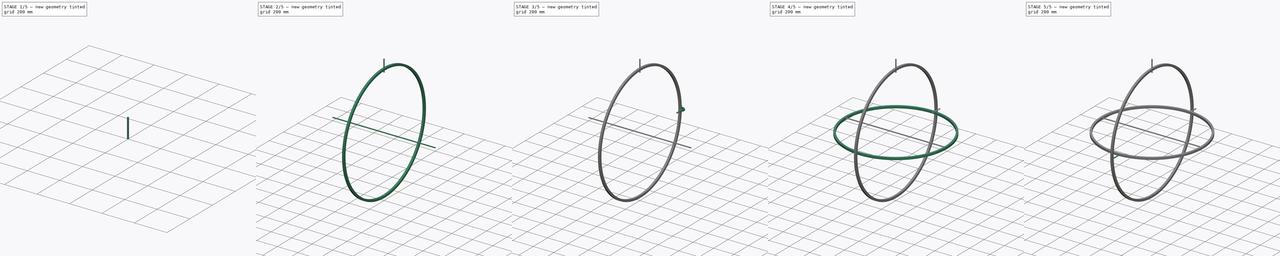
[diagram: build sequence overview — one tinted view per stage of 5, left to right]
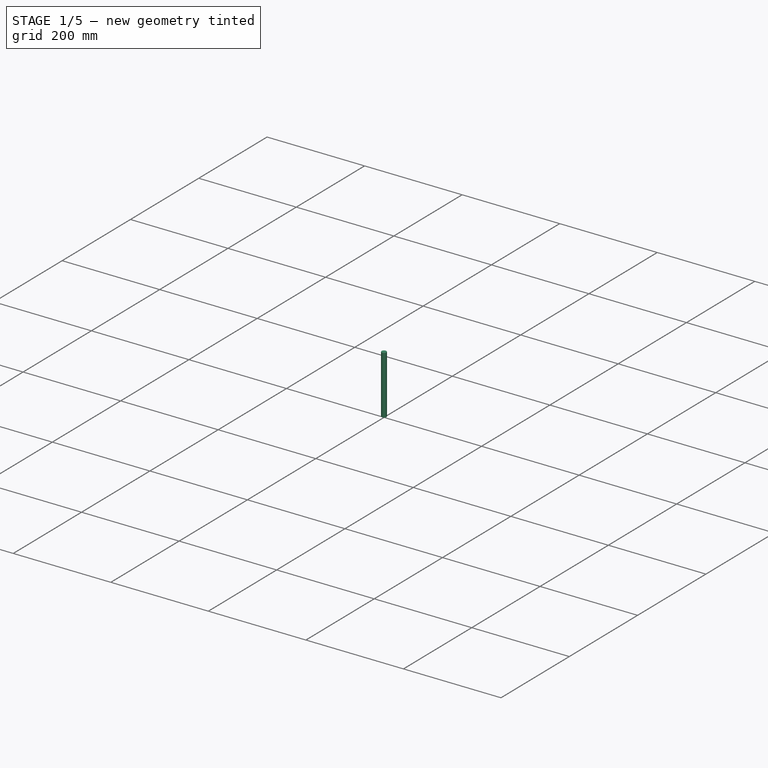
[diagram: stage 1 of 5 — iso view after this stage's code; geometry added in this stage tinted green]
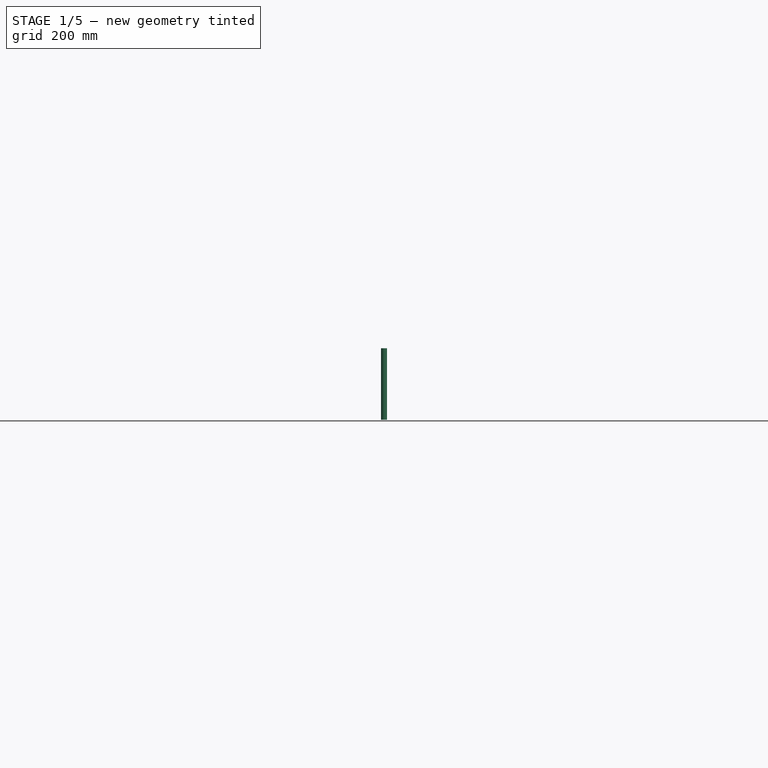
[diagram: stage 1 of 5 — front view after this stage's code; geometry added in this stage tinted green]
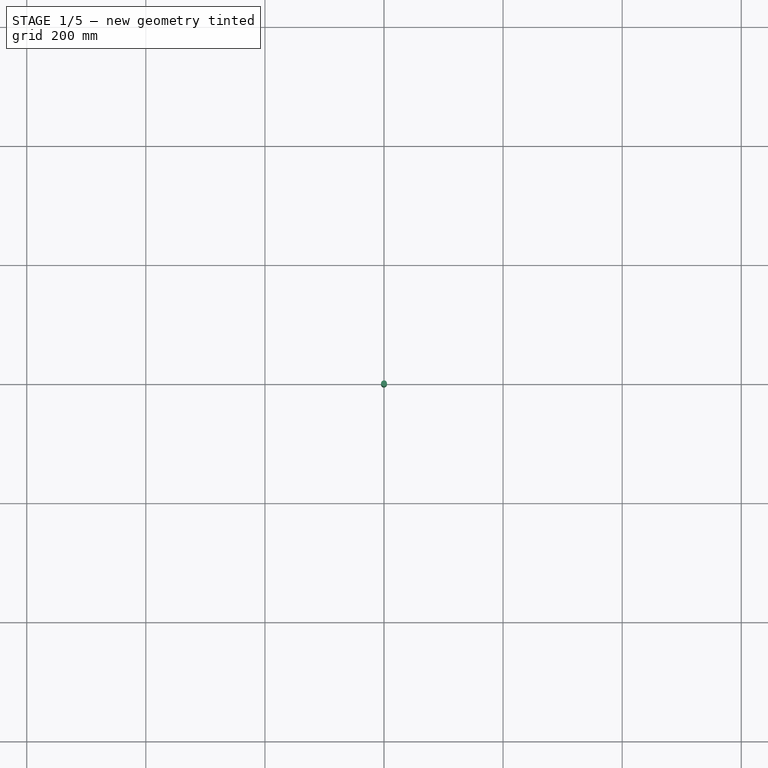
[diagram: stage 1 of 5 — top view after this stage's code; geometry added in this stage tinted green]
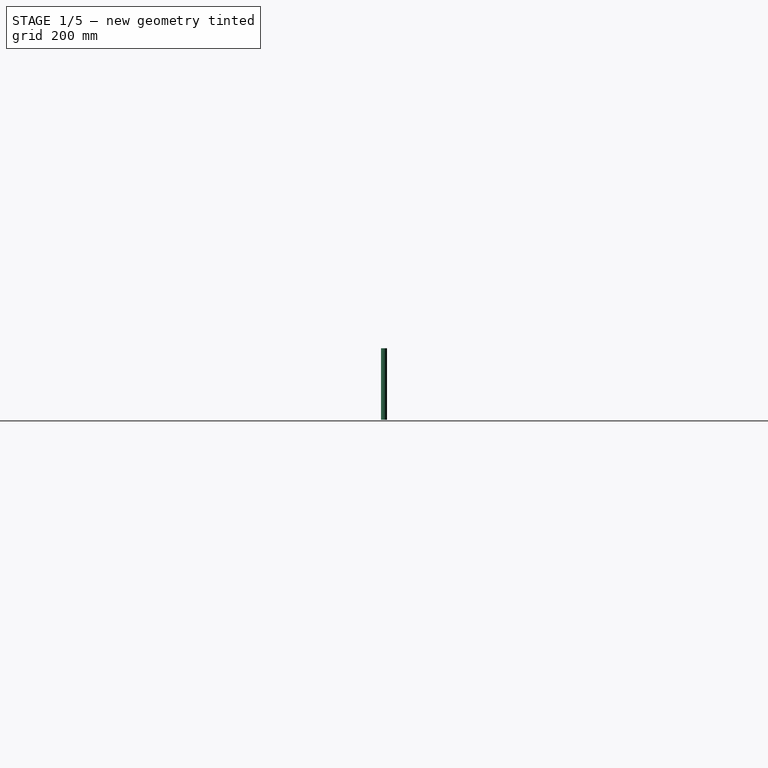
[diagram: stage 1 of 5 — right view after this stage's code; geometry added in this stage tinted green]
FCSTD DOCUMENT  (FreeCAD 0.20R25943 (Git))
Label: bancada
License: All rights reserved
LicenseURL: http://en.wikipedia.org/wiki/All_rights_reserved
objects: Sketcher::SketchObject×14, Part::Extrusion×9, Part::Cut×5, Part::Mirroring×3, Part::FeaturePython×2, PartDesign::Body×1, Part::Compound×1
note: 35 computed .brp shape members not serialized (recipe doc carries the construction recipe); baked Part::Feature solids carry a one-line shape summary decoded from their .brp

FEATURE [Sketcher::SketchObject] Sketch011
  FullyConstrained = true
  Placement = pos=(0,0,0) rot=(0.57735,0.57735,0.57735;2.0944rad)
  sketch-geometry (8):
    g0: LineSegment StartX=-600 StartY=600 StartZ=0 EndX=600 EndY=600 EndZ=0
    g1: LineSegment StartX=600 StartY=600 StartZ=0 EndX=600 EndY=-600 EndZ=0
    g2: LineSegment StartX=600 StartY=-600 StartZ=0 EndX=-600 EndY=-600 EndZ=0
    g3: LineSegment StartX=-600 StartY=-600 StartZ=0 EndX=-600 EndY=600 EndZ=0
    g4: LineSegment StartX=-650 StartY=650 StartZ=0 EndX=650 EndY=650 EndZ=0
    g5: LineSegment StartX=650 StartY=650 StartZ=0 EndX=650 EndY=-650 EndZ=0
    g6: LineSegment StartX=650 StartY=-650 StartZ=0 EndX=-650 EndY=-650 EndZ=0
    g7: LineSegment StartX=-650 StartY=-650 StartZ=0 EndX=-650 EndY=650 EndZ=0
  constraints (22):
    c: Coincident(g0,g1)
    c: Coincident(g1,g2)
    c: Coincident(g2,g3)
    c: Coincident(g3,g0)
    c: Horizontal(g0)
    c: Horizontal(g2)
    c: Vertical(g1)
    c: Vertical(g3)
    c: Distance(g1) = 1200
    c: Equal(g2,g3)
    c: Symmetric(g0,g1,g-1)
    c: Coincident(g4,g5)
    c: Coincident(g5,g6)
    c: Coincident(g6,g7)
    c: Coincident(g7,g4)
    c: Horizontal(g4)
    c: Horizontal(g6)
    c: Vertical(g5)
    c: Vertical(g7)
    c: Equal(g4,g7)
    c: Symmetric(g5,g4,g-1)
    c: DistanceX(g4,g0) = 50
FEATURE [Part::Extrusion] Extrude011
  Base = -> Sketch011
  Dir = (1,0,0)
  DirMode = 2
  FaceMakerClass = Part::FaceMakerBullseye
  LengthFwd = 50
  LengthRev = 0
  Solid = true
  Symmetric = true
FEATURE [Sketcher::SketchObject] Sketch012
  FullyConstrained = true
  MapMode = 5
  Placement = pos=(0,0,650) rot=(0,0,1;0rad)
  Support = -> [Extrude011]
  sketch-geometry (1):
    g0: Circle CenterX=0 CenterY=0 CenterZ=0 NormalX=0 NormalY=0 NormalZ=1 AngleXU=0 Radius=5
  constraints (2):
    c: Diameter(g0) = 10
    c: Coincident(g-1,g0)
FEATURE [Part::Extrusion] Extrude012
  Base = -> Sketch012
  Dir = (0,0,-1)
  DirMode = 0
  FaceMakerClass = Part::FaceMakerBullseye
  LengthFwd = 1500
  LengthRev = 0
  Solid = true
  Symmetric = false
FEATURE [Part::Cut] Cut006
  Base = -> Extrude011
  Tool = -> Extrude012
FEATURE [Sketcher::SketchObject] Sketch013
  FullyConstrained = true
  MapMode = 5
  Placement = pos=(0,0,-650) rot=(1,0,0;3.14159rad)
  Support = -> [Cut006]
  sketch-geometry (1):
    g0: Circle CenterX=0 CenterY=0 CenterZ=0 NormalX=0 NormalY=0 NormalZ=1 AngleXU=0 Radius=5
  constraints (2):
    c: Coincident(g0,g-1)
    c: Diameter(g0) = 10
FEATURE [Part::Extrusion] Extrude013
  Base = -> Sketch013
  Dir = (0,0,1)
  DirMode = 0
  FaceMakerClass = Part::FaceMakerBullseye
  LengthFwd = 120
  LengthRev = 0
  Solid = true
  Symmetric = false
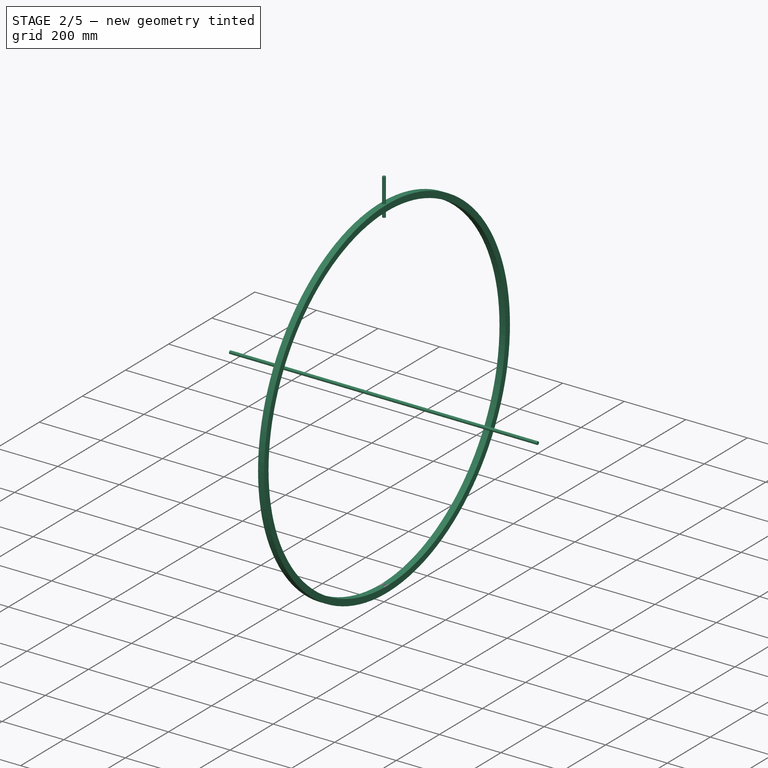
[diagram: stage 2 of 5 — iso view after this stage's code; geometry added in this stage tinted green]
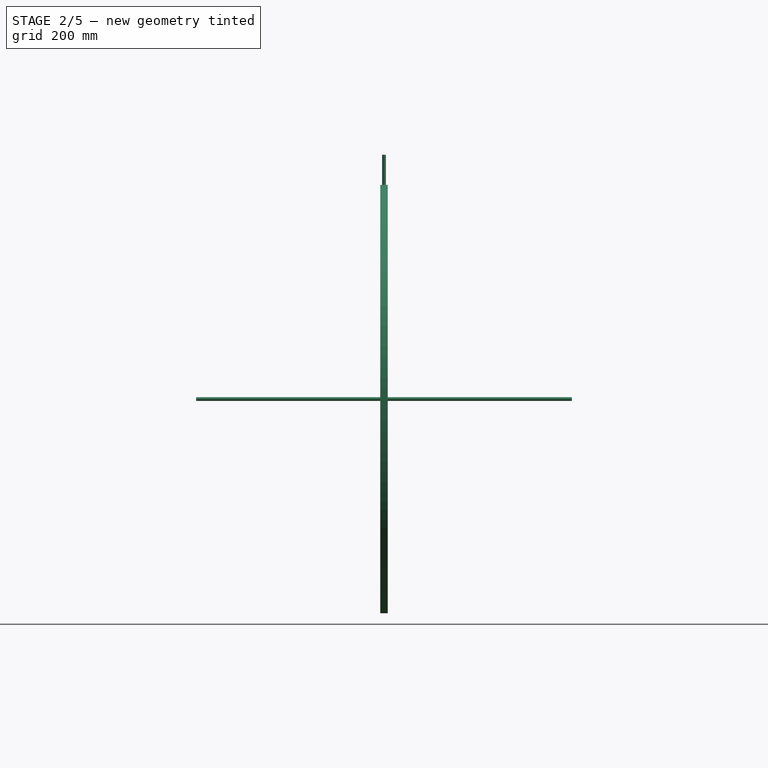
[diagram: stage 2 of 5 — front view after this stage's code; geometry added in this stage tinted green]
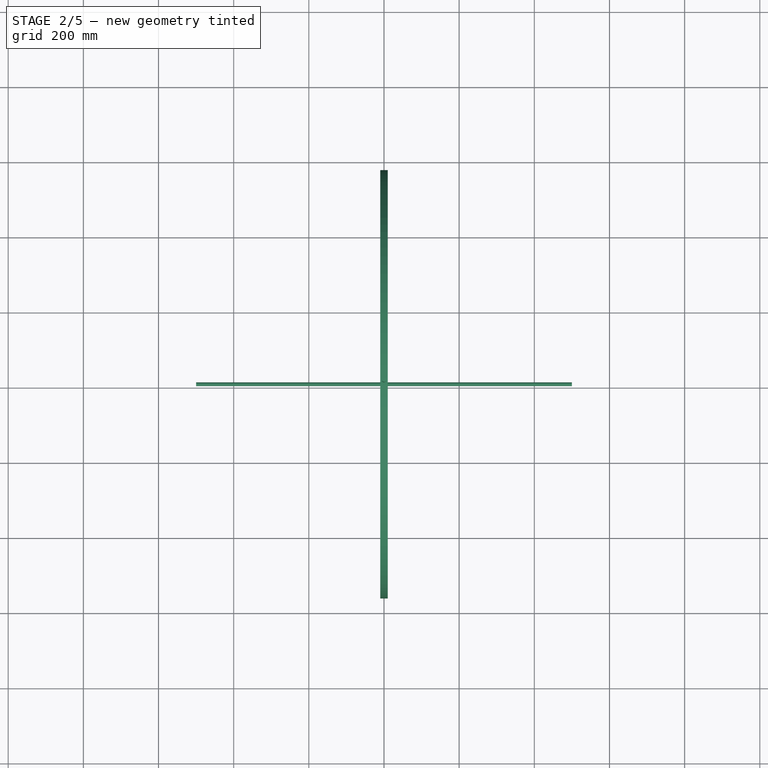
[diagram: stage 2 of 5 — top view after this stage's code; geometry added in this stage tinted green]
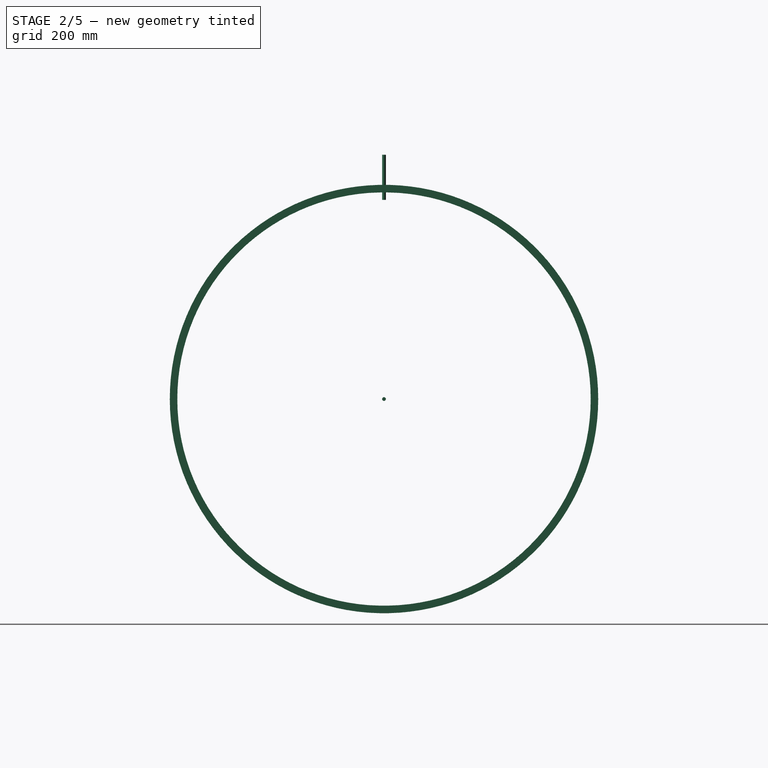
[diagram: stage 2 of 5 — right view after this stage's code; geometry added in this stage tinted green]
FEATURE [Sketcher::SketchObject] Sketch
  FullyConstrained = true
  MapMode = 5
  Support = -> [XY_Plane]
  sketch-geometry (3):
    g0: Circle CenterX=0 CenterY=0 CenterZ=0 NormalX=0 NormalY=0 NormalZ=1 AngleXU=0 Radius=500
    g1: Circle CenterX=0 CenterY=0 CenterZ=0 NormalX=0 NormalY=0 NormalZ=1 AngleXU=0 Radius=480
    g2: LineSegment StartX=500 StartY=0 StartZ=0 EndX=480 EndY=0 EndZ=0
  constraints (8):
    c: Coincident(g0,g-1)
    c: Radius(g0) = 500
    c: PointOnObject(g2,g0)
    c: PointOnObject(g2,g1)
    c: Distance(g2) = 20  'espessura_arco'
    c: Horizontal(g2,g0)
    c: Coincident(g1,g0)
    c: Horizontal(g2)
FEATURE [Sketcher::SketchObject] Sketch001
  ExternalGeometry = -> [Sketch]
  FullyConstrained = true
  Placement = pos=(0,0,0) rot=(0.57735,0.57735,0.57735;2.0944rad)
  expr: Constraints[4] = Sketch.Constraints.espessura_arco
  sketch-geometry (4):
    g0: Circle CenterX=0 CenterY=0 CenterZ=0 NormalX=0 NormalY=0 NormalZ=1 AngleXU=0 Radius=570
    g1: Circle CenterX=0 CenterY=0 CenterZ=0 NormalX=0 NormalY=0 NormalZ=1 AngleXU=0 Radius=550
    g2: LineSegment StartX=-570 StartY=0 StartZ=0 EndX=-550 EndY=0 EndZ=0
    g3: LineSegment StartX=-550 StartY=0 StartZ=0 EndX=-500 EndY=0 EndZ=0
  constraints (10):
    c: Coincident(g0,g-1)
    c: Coincident(g0,g1)
    c: PointOnObject(g2,g0)
    c: Perpendicular(g1,g2)
    c: Distance(g2) = 20
    c: PointOnObject(g3,g1)
    c: Coincident(g3,g-3)
    c: Perpendicular(g1,g3)
    c: Distance(g3) = 50  'espacamento'
    c: Coincident(g2,g3)
FEATURE [PartDesign::Body] Body
  Group = -> [Sketch,Sketch001]
  Origin = -> Origin
FEATURE [Part::Extrusion] Extrude  label="arcoExterno"
  Base = -> Sketch001
  Dir = (1,0,0)
  DirMode = 2
  FaceMakerClass = Part::FaceMakerBullseye
  LengthFwd = 10
  LengthRev = 10
  Solid = true
  Symmetric = false
FEATURE [Sketcher::SketchObject] Sketch008
  ExternalGeometry = -> [Sketch]
  FullyConstrained = true
  sketch-geometry (1):
    g0: LineSegment StartX=-500 StartY=0 StartZ=0 EndX=500 EndY=0 EndZ=0
  constraints (4):
    c: Horizontal(g0)
    c: PointOnObject(g-1,g0)
    c: PointOnObject(g0,g-4)
    c: PointOnObject(g0,g-4)
FEATURE [Sketcher::SketchObject] Sketch009
  FullyConstrained = true
  Placement = pos=(0,0,0) rot=(0.57735,0.57735,0.57735;2.0944rad)
  sketch-geometry (1):
    g0: Circle CenterX=0 CenterY=0 CenterZ=0 NormalX=0 NormalY=0 NormalZ=1 AngleXU=0 Radius=5
  constraints (2):
    c: Coincident(g0,g-1)
    c: Diameter(g0) = 10
FEATURE [Part::Extrusion] Extrude009
  Base = -> Sketch009
  Dir = (1,0,0)
  DirMode = 2
  FaceMakerClass = Part::FaceMakerBullseye
  LengthFwd = 1000
  LengthRev = 0
  Solid = true
  Symmetric = true
FEATURE [Part::Cut] Cut
  Base = -> Extrude
  Tool = -> Extrude012
FEATURE [Part::Mirroring] Part__Mirroring  label="Extrude013 (Mirror #3)"
  Base = (0,0,0)
  Normal = (0,0,1)
  Source = -> Extrude013
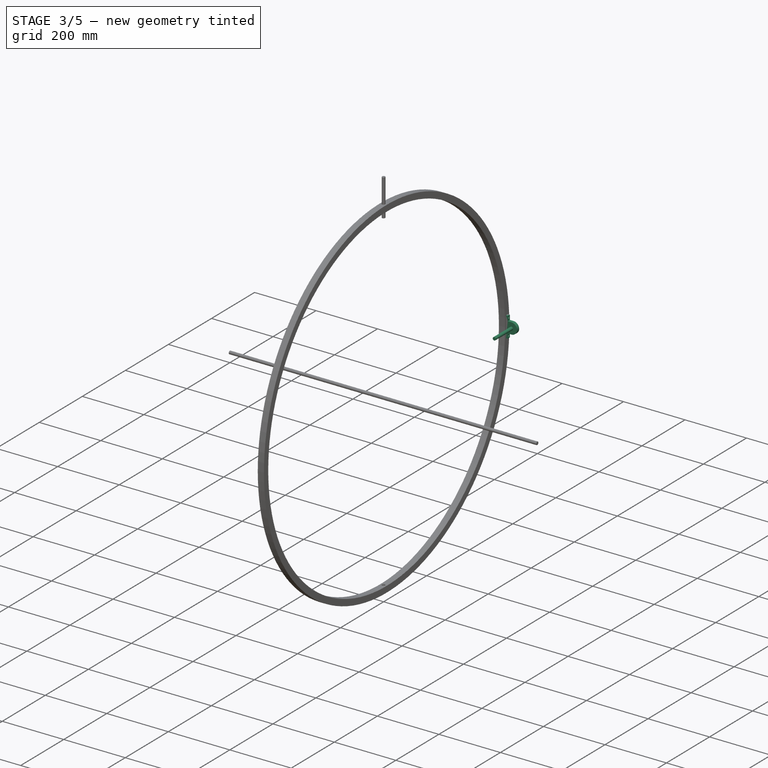
[diagram: stage 3 of 5 — iso view after this stage's code; geometry added in this stage tinted green]
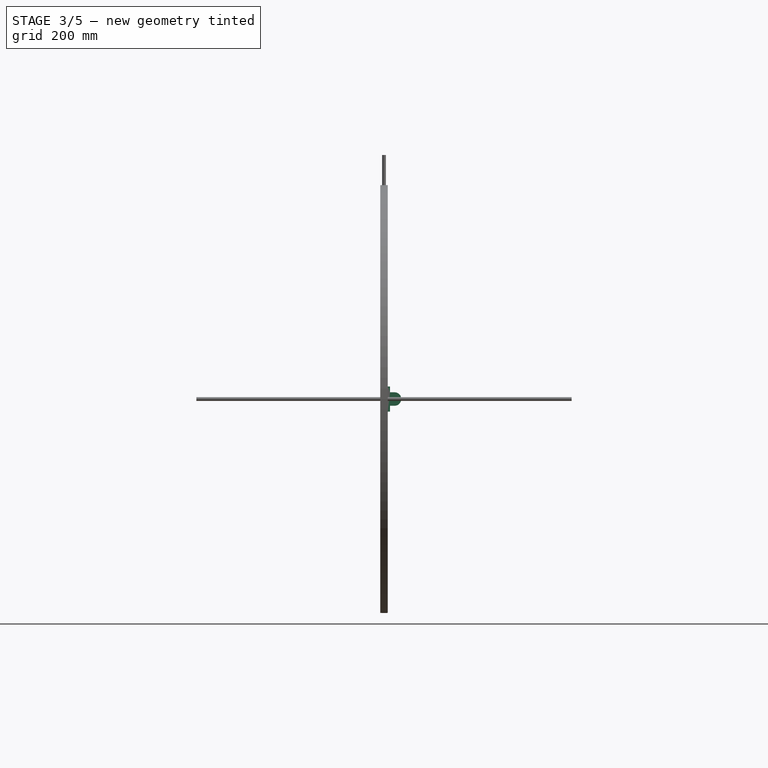
[diagram: stage 3 of 5 — front view after this stage's code; geometry added in this stage tinted green]
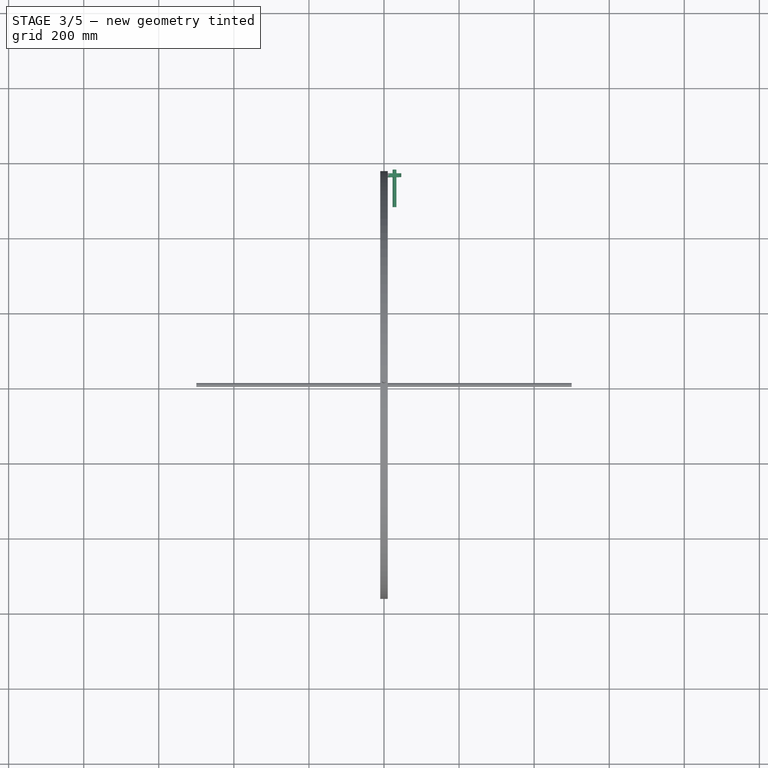
[diagram: stage 3 of 5 — top view after this stage's code; geometry added in this stage tinted green]
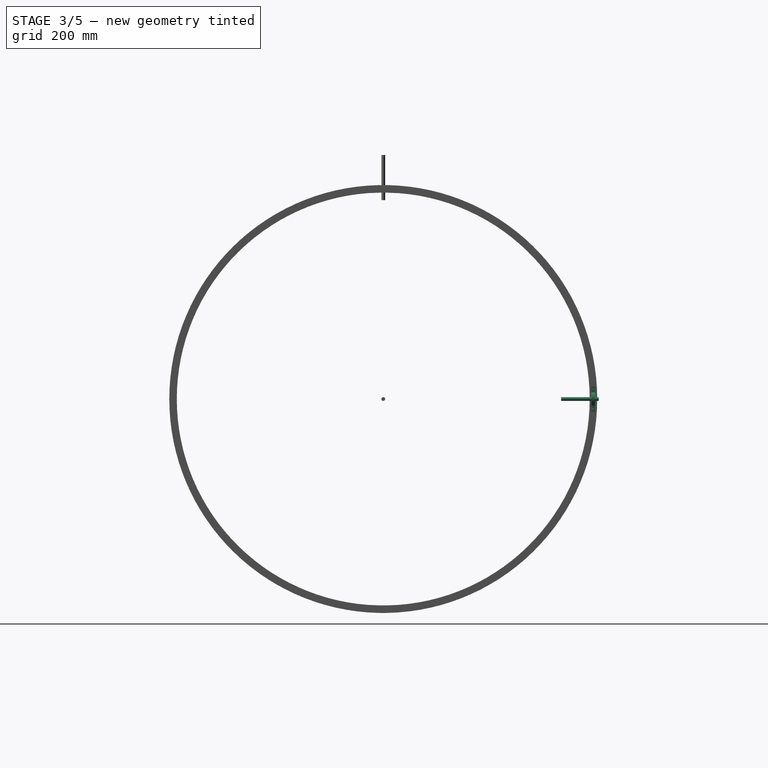
[diagram: stage 3 of 5 — right view after this stage's code; geometry added in this stage tinted green]
FEATURE [Sketcher::SketchObject] Sketch002
  ExternalGeometry = -> [Extrude]
  FullyConstrained = true
  MapMode = 5
  Placement = pos=(10,0,0) rot=(0.57735,0.57735,0.57735;2.0944rad)
  Support = -> [Extrude]
  sketch-geometry (6):
    g0: LineSegment StartX=-33.5 StartY=563.997 StartZ=0 EndX=33.5 EndY=563.997 EndZ=0
    g1: LineSegment StartX=33.5 StartY=563.997 StartZ=0 EndX=33.5 EndY=553.997 EndZ=0
    g2: LineSegment StartX=33.5 StartY=553.997 StartZ=0 EndX=-33.5 EndY=553.997 EndZ=0
    g3: LineSegment StartX=-33.5 StartY=553.997 StartZ=0 EndX=-33.5 EndY=563.997 EndZ=0
    g4: LineSegment StartX=33.5 StartY=563.997 StartZ=0 EndX=33.5 EndY=569.015 EndZ=0
    g5: LineSegment StartX=33.5 StartY=548.979 StartZ=0 EndX=33.5 EndY=553.997 EndZ=0
  constraints (17):
    c: Coincident(g0,g1)
    c: Coincident(g1,g2)
    c: Coincident(g2,g3)
    c: Coincident(g3,g0)
    c: Horizontal(g0)
    c: Vertical(g1)
    c: Vertical(g3)
    c: Symmetric(g2,g1,g-2)
    c: Distance(g1) = 10
    c: Distance(g2) = 67
    c: Coincident(g4,g0)
    c: PointOnObject(g4,g-3)
    c: Vertical(g4)
    c: PointOnObject(g5,g-4)
    c: Coincident(g5,g1)
    c: Perpendicular(g2,g5)
    c: Equal(g4,g5)
FEATURE [Sketcher::SketchObject] Sketch003
  FullyConstrained = false
  MapMode = 5
  Placement = pos=(0,0,553.997) rot=(1,0,0;3.14159rad)
  sketch-geometry (8):
    g0: ArcOfCircle CenterX=28 CenterY=0 CenterZ=0 NormalX=0 NormalY=0 NormalZ=1 AngleXU=0 Radius=18 StartAngle=4.71239 EndAngle=7.85398
    g1: LineSegment StartX=16 StartY=38 StartZ=0 EndX=16 EndY=18 EndZ=0
    g2: LineSegment StartX=16 StartY=18 StartZ=0 EndX=28 EndY=18 EndZ=0
    g3: LineSegment StartX=16 StartY=38 StartZ=0 EndX=56 EndY=38 EndZ=0
    g4: LineSegment StartX=56 StartY=38 StartZ=0 EndX=56 EndY=-38 EndZ=0
    g5: LineSegment StartX=56 StartY=-38 StartZ=0 EndX=16 EndY=-38 EndZ=0
    g6: LineSegment StartX=16 StartY=-38 StartZ=0 EndX=16 EndY=-18 EndZ=0
    g7: LineSegment StartX=16 StartY=-18 StartZ=0 EndX=28 EndY=-18 EndZ=0
  constraints (24):
    c: Coincident(g1,g2)
    c: Coincident(g2,g0)
    c: Coincident(g1,g3)
    c: Horizontal(g3)
    c: Coincident(g3,g4)
    c: Coincident(g4,g5)
    c: Coincident(g5,g6)
    c: Vertical(g6)
    c: Coincident(g6,g7)
    c: Coincident(g7,g0)
    c: Vertical(g0,g0)
    c: Vertical(g0,g0)
    c: Perpendicular(g1,g2)
    c: Perpendicular(g6,g7)
    c: Perpendicular(g3,g1)
    c: Perpendicular(g4,g3)
    c: Perpendicular(g4,g5)
    c: PointOnObject(g0,g-1)
    c: Radius(g0) = 18
    c: Equal(g7,g2)
    c: Distance(g7) = 12
    c: Equal(g1,g6)
    c: Distance(g5) = 40
    c: Distance(g6) = 20
FEATURE [Sketcher::SketchObject] Sketch004
  FullyConstrained = false
  MapMode = 5
  Placement = pos=(16,0,0) rot=(0.57735,0.57735,0.57735;2.0944rad)
  sketch-geometry (5):
    g0: Circle CenterX=-26.5 CenterY=558.997 CenterZ=0 NormalX=0 NormalY=0 NormalZ=1 AngleXU=0 Radius=3
    g1: Circle CenterX=26.5 CenterY=558.997 CenterZ=0 NormalX=0 NormalY=0 NormalZ=1 AngleXU=0 Radius=3
    g2: LineSegment StartX=-26.5 StartY=558.997 StartZ=0 EndX=26.5 EndY=558.997 EndZ=0
    g3: LineSegment StartX=26.5 StartY=558.997 StartZ=0 EndX=33.5 EndY=558.997 EndZ=0
    g4: LineSegment StartX=-33.5 StartY=558.997 StartZ=0 EndX=-26.5 EndY=558.997 EndZ=0
  constraints (11):
    c: Coincident(g2,g1)
    c: Horizontal(g2)
    c: Equal(g0,g1)
    c: Diameter(g0) = 6
    c: Distance(g2) = 53
    c: Coincident(g3,g1)
    c: Horizontal(g3)
    c: Coincident(g4,g0)
    c: Horizontal(g4)
    c: Coincident(g0,g2)
    c: Equal(g3,g4)
FEATURE [Sketcher::SketchObject] Sketch005
  FullyConstrained = false
  MapMode = 5
  Placement = pos=(0,0,553.997) rot=(1,0,0;3.14159rad)
  sketch-geometry (1):
    g0: Circle CenterX=28 CenterY=0 CenterZ=0 NormalX=0 NormalY=0 NormalZ=1 AngleXU=0 Radius=5
  constraints (1):
    c: Diameter(g0) = 10
FEATURE [Part::FeaturePython] Clone  label="mancal"  # WARN: FeaturePython — macro-defined, semantics opaque (R4)
  AttacherType = Attacher::AttachEngine3D
  Fuse = false
  Placement = pos=(0,0,0) rot=(1,0,0;1.5708rad)
  Scale = (1,1,1)
FEATURE [Part::FeaturePython] Clone001  label="mancal002"  # WARN: FeaturePython — macro-defined, semantics opaque (R4)
  AttacherType = Attacher::AttachEngine3D
  Fuse = false
  Placement = pos=(0,0,0) rot=(1,0,0;1.5708rad)
  Scale = (1,1,1)
FEATURE [Sketcher::SketchObject] Sketch007
  ExternalGeometry = -> [Clone]
  FullyConstrained = true
  MapMode = 5
  Placement = pos=(0,-563.997,1.252e-13) rot=(1,0,0;1.5708rad)
  Support = -> [Clone]
  sketch-geometry (1):
    g0: Circle CenterX=28 CenterY=0 CenterZ=0 NormalX=0 NormalY=0 NormalZ=1 AngleXU=0 Radius=5
  constraints (2):
    c: Coincident(g0,g-3)
    c: Diameter(g0) = 10
FEATURE [Part::Extrusion] Extrude008
  Base = -> Sketch007
  Dir = (0,-1,2e-16)
  DirMode = 2
  FaceMakerClass = Part::FaceMakerBullseye
  LengthFwd = 90
  LengthRev = 10
  Reversed = true
  Solid = true
  Symmetric = false
FEATURE [Part::Mirroring] Part__Mirroring002  label="Extrude008 (Mirror #3)"
  Base = (0,0,0)
  Normal = (0,1,0)
  Source = -> Extrude008
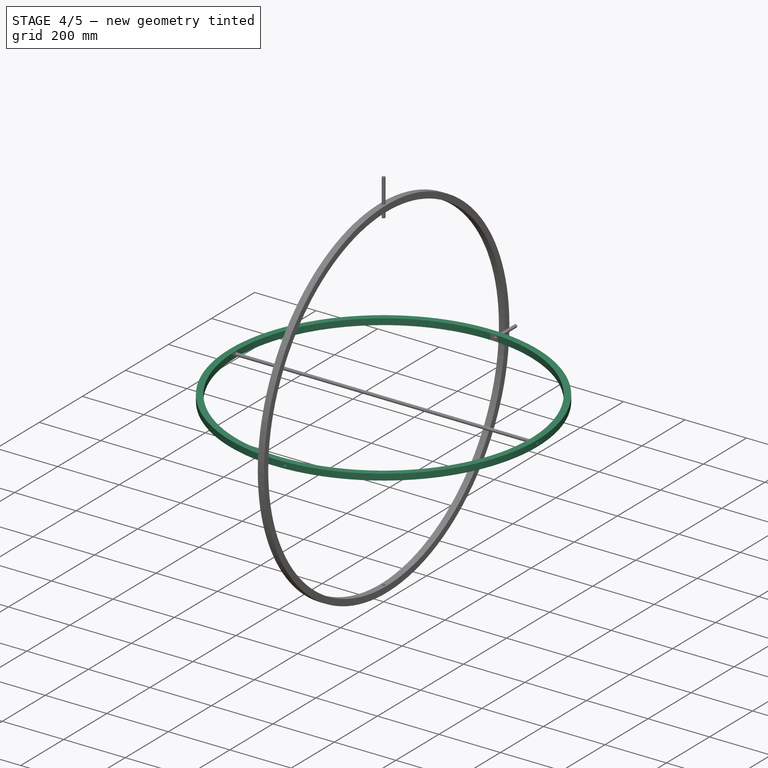
[diagram: stage 4 of 5 — iso view after this stage's code; geometry added in this stage tinted green]
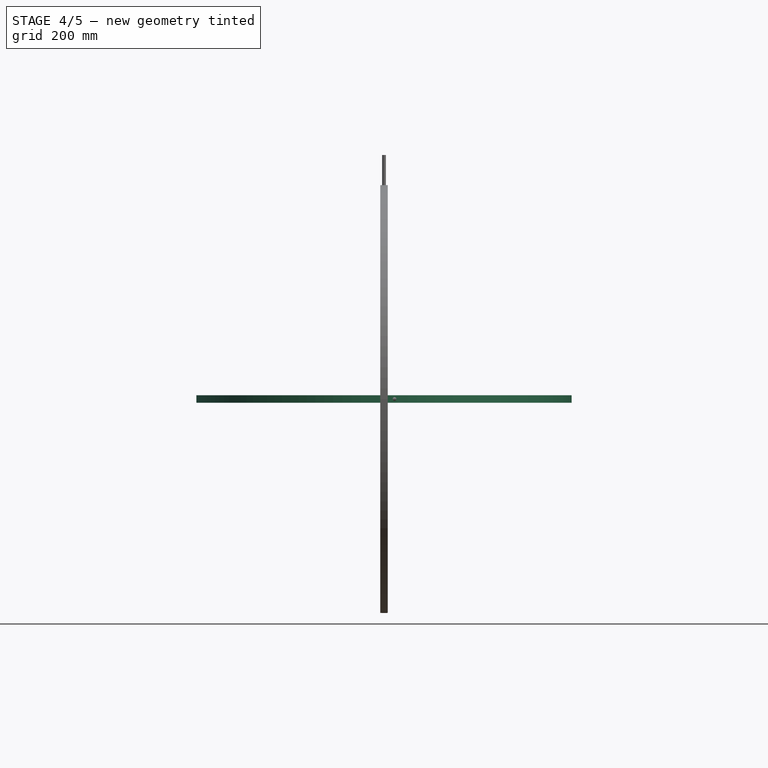
[diagram: stage 4 of 5 — front view after this stage's code; geometry added in this stage tinted green]
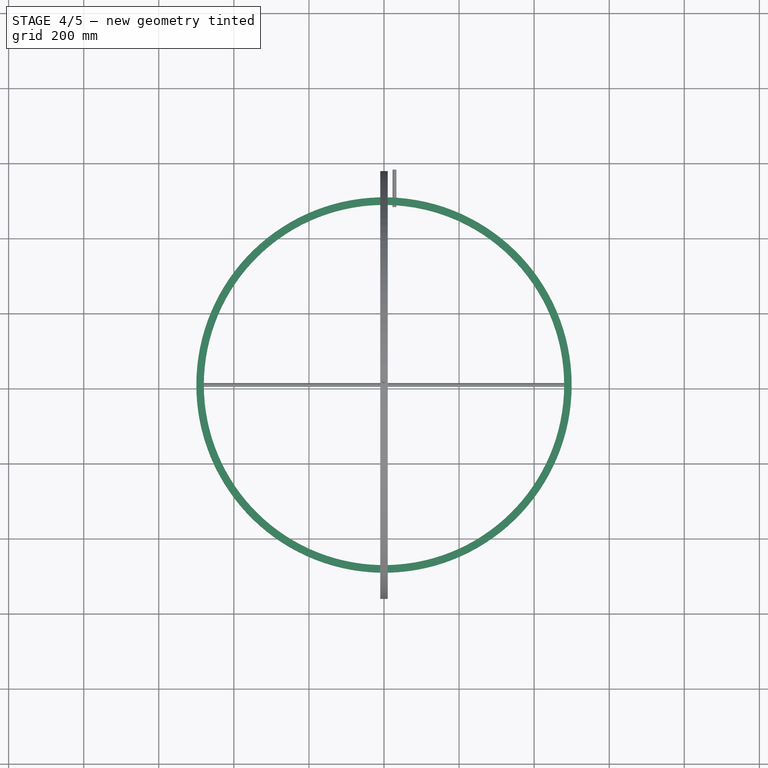
[diagram: stage 4 of 5 — top view after this stage's code; geometry added in this stage tinted green]
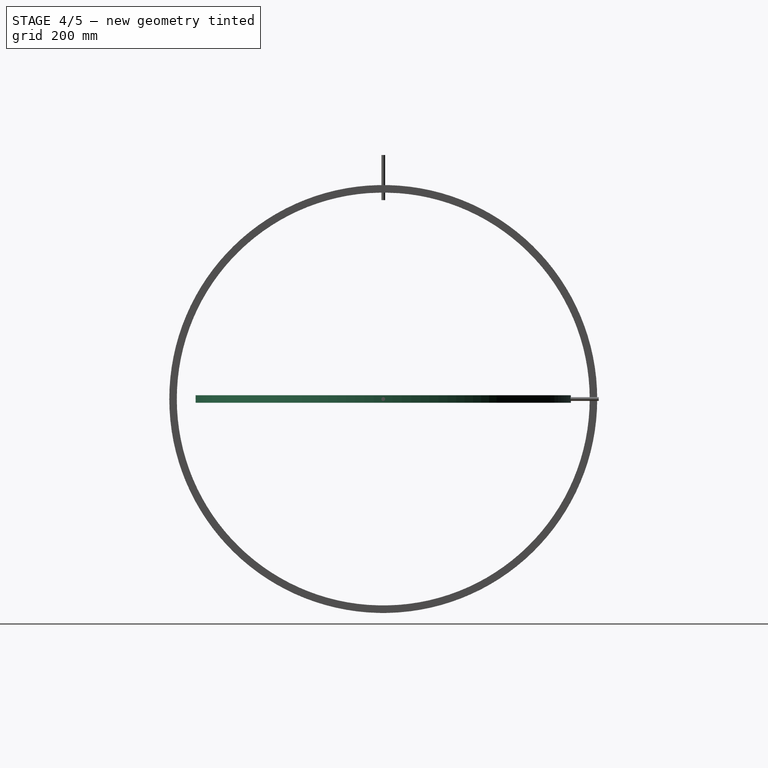
[diagram: stage 4 of 5 — right view after this stage's code; geometry added in this stage tinted green]
FEATURE [Sketcher::SketchObject] Sketch006
  ExternalGeometry = -> [Clone001]
  FullyConstrained = true
  MapMode = 5
  Placement = pos=(0,563.997,-1.252e-13) rot=(-1,0,0;1.5708rad)
  Support = -> [Clone001]
  sketch-geometry (1):
    g0: Circle CenterX=28 CenterY=0 CenterZ=0 NormalX=0 NormalY=0 NormalZ=1 AngleXU=0 Radius=5
  constraints (2):
    c: Diameter(g0) = 10
    c: Coincident(g0,g-3)
FEATURE [Part::Extrusion] Extrude006
  Base = -> Sketch
  Dir = (0,0,1)
  DirMode = 2
  FaceMakerClass = Part::FaceMakerBullseye
  LengthFwd = 10
  LengthRev = 10
  Solid = true
  Symmetric = false
FEATURE [Part::Extrusion] Extrude007
  Base = -> Sketch006
  Dir = (0,1,-2e-16)
  DirMode = 2
  FaceMakerClass = Part::FaceMakerBullseye
  LengthFwd = 100
  LengthRev = 0
  Reversed = true
  Solid = true
  Symmetric = false
FEATURE [Part::Mirroring] Part__Mirroring001  label="Extrude007 (Mirror #2)"
  Base = (0,0,0)
  Normal = (0,1,0)
  Source = -> Extrude007
FEATURE [Part::Cut] Cut003
  Base = -> Extrude006
  Tool = -> Part__Mirroring001
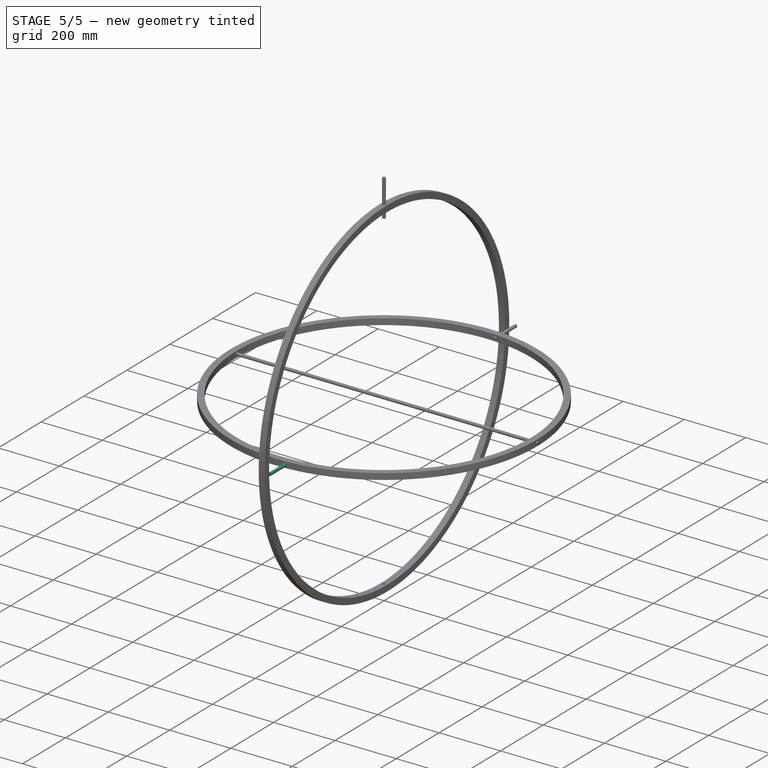
[diagram: stage 5 of 5 — iso view after this stage's code; geometry added in this stage tinted green]
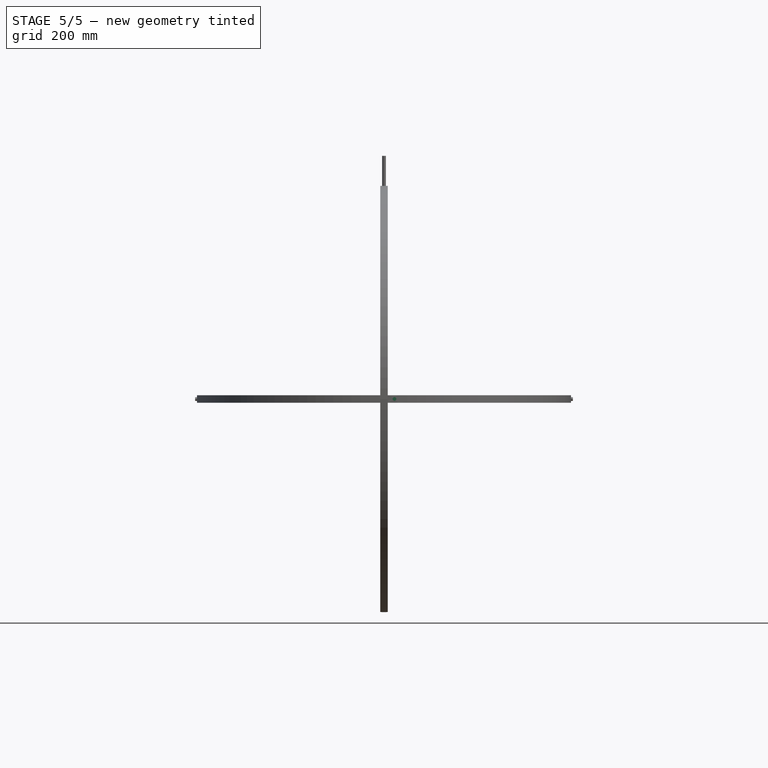
[diagram: stage 5 of 5 — front view after this stage's code; geometry added in this stage tinted green]
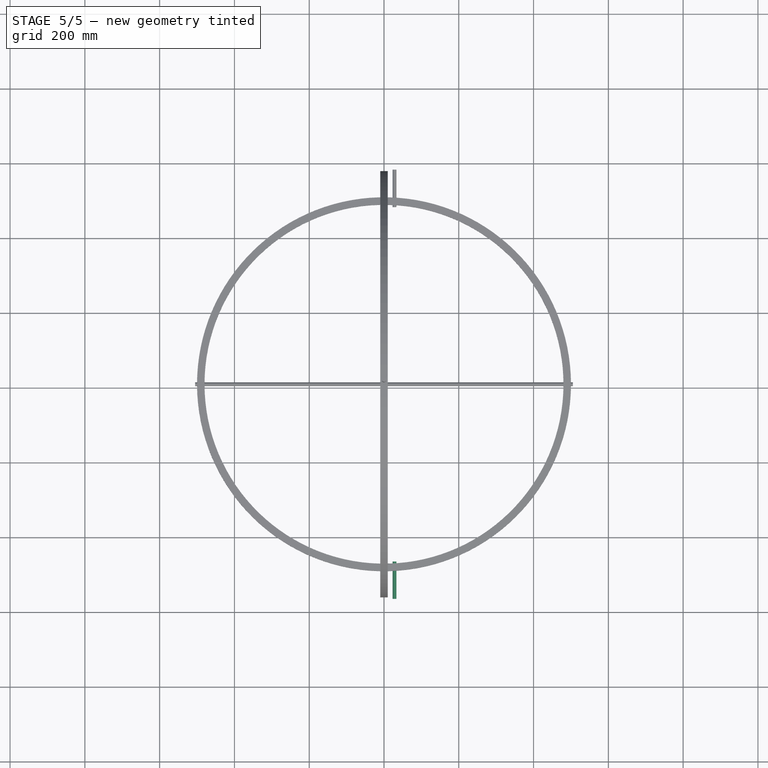
[diagram: stage 5 of 5 — top view after this stage's code; geometry added in this stage tinted green]
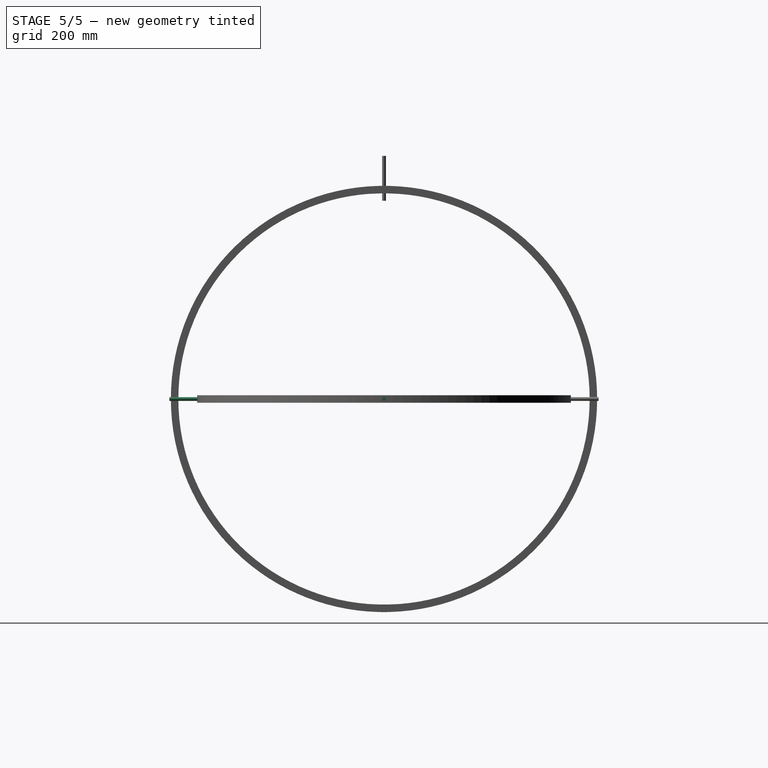
[diagram: stage 5 of 5 — right view after this stage's code; geometry added in this stage tinted green]
FEATURE [Part::Cut] Cut004
  Base = -> Cut003
  Tool = -> Extrude007
FEATURE [Part::Compound] Compound001  label="arcoInterno"
  Links = -> [Extrude008,Part__Mirroring002,Cut004]
FEATURE [Sketcher::SketchObject] Sketch010
  FullyConstrained = true
  Placement = pos=(0,0,0) rot=(0.57735,0.57735,0.57735;2.0944rad)
  sketch-geometry (1):
    g0: Circle CenterX=0 CenterY=0 CenterZ=0 NormalX=0 NormalY=0 NormalZ=1 AngleXU=0 Radius=5
  constraints (2):
    c: Coincident(g0,g-1)
    c: Diameter(g0) = 10
FEATURE [Part::Extrusion] Extrude010
  Base = -> Sketch010
  Dir = (1,0,0)
  DirMode = 2
  FaceMakerClass = Part::FaceMakerBullseye
  LengthFwd = 1010
  LengthRev = 0
  Solid = true
  Symmetric = true
FEATURE [Part::Cut] Cut005
  Base = -> Compound001
  Tool = -> Extrude009
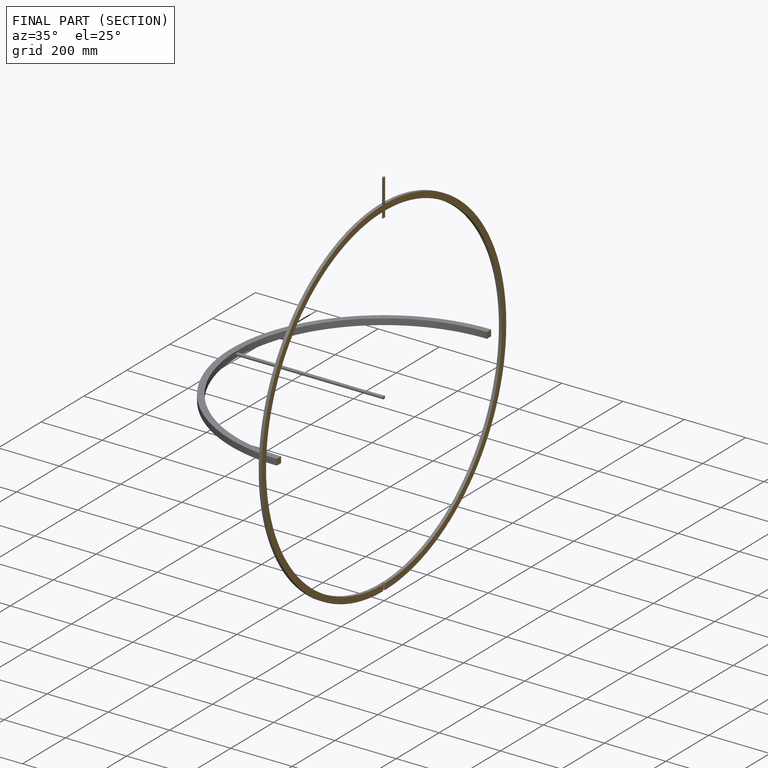
[diagram: finished part — half-section view (interior)]
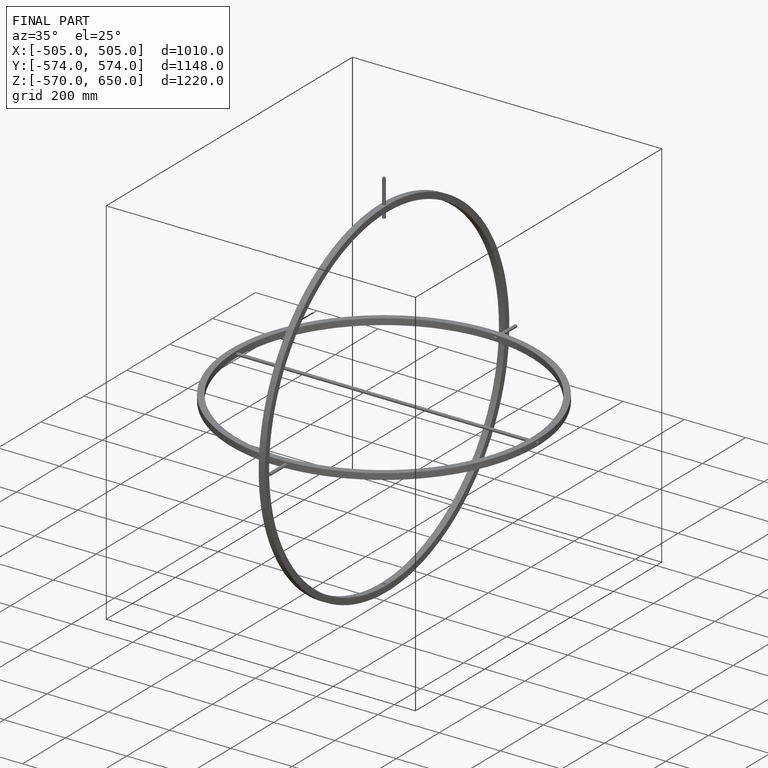
[diagram: finished part — iso view with bounding-box wireframe]
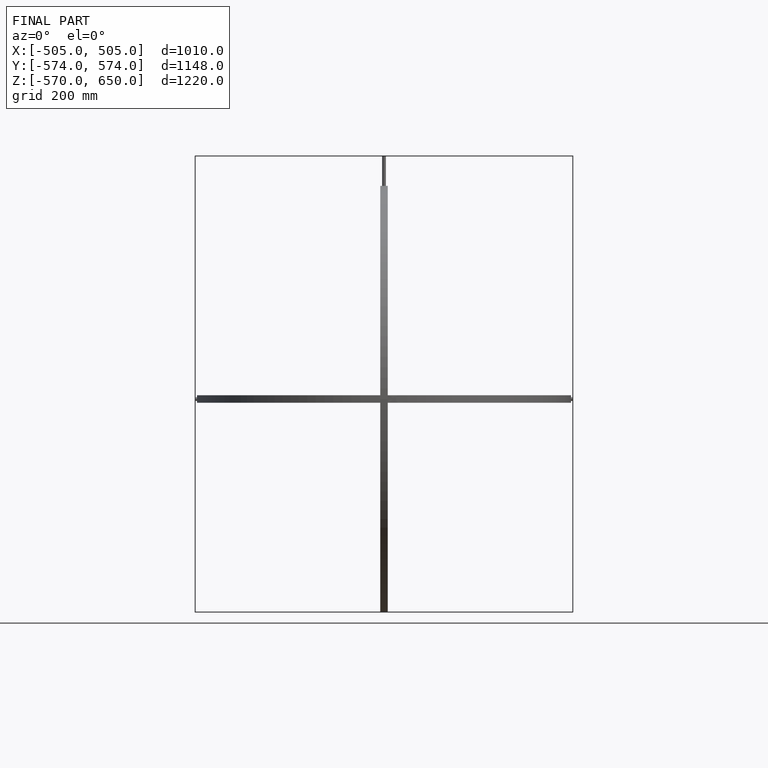
[diagram: finished part — front view with bounding-box wireframe]
